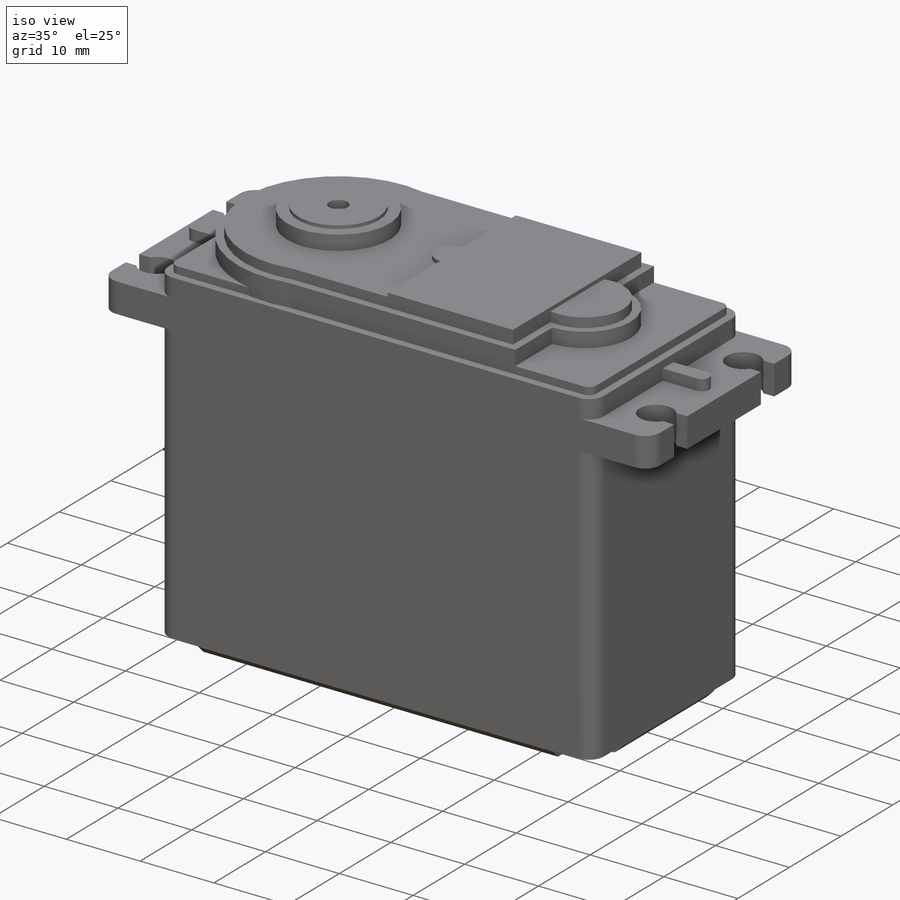
[diagram: iso view]
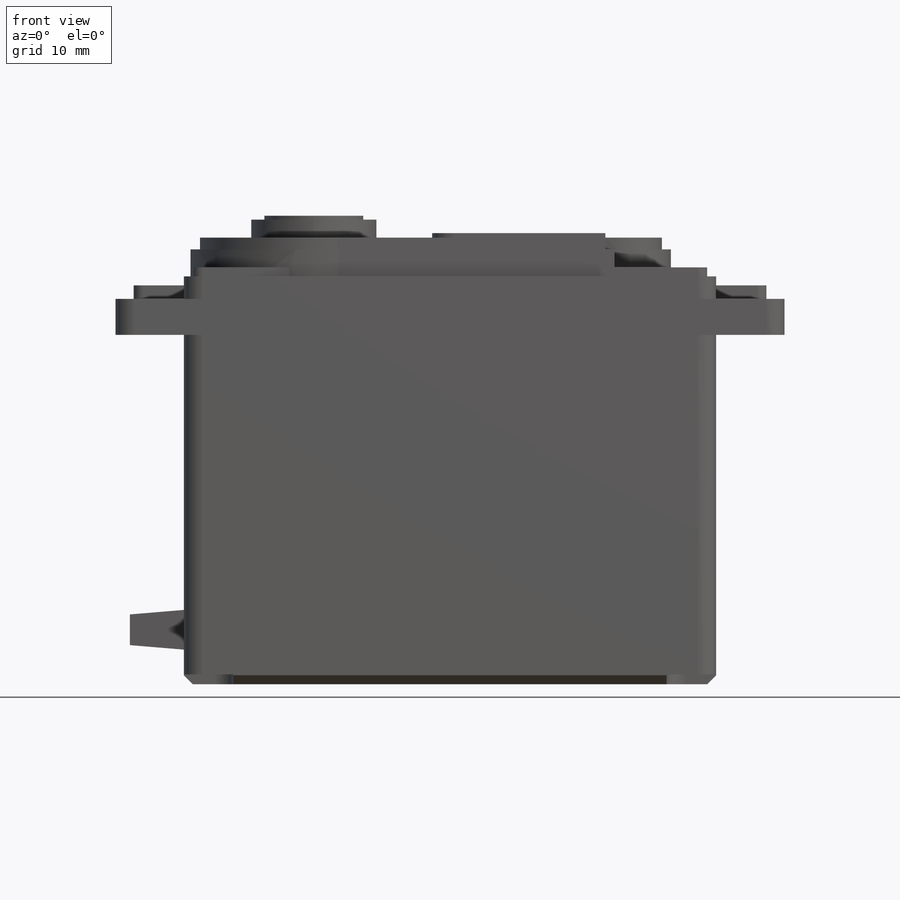
[diagram: front view]
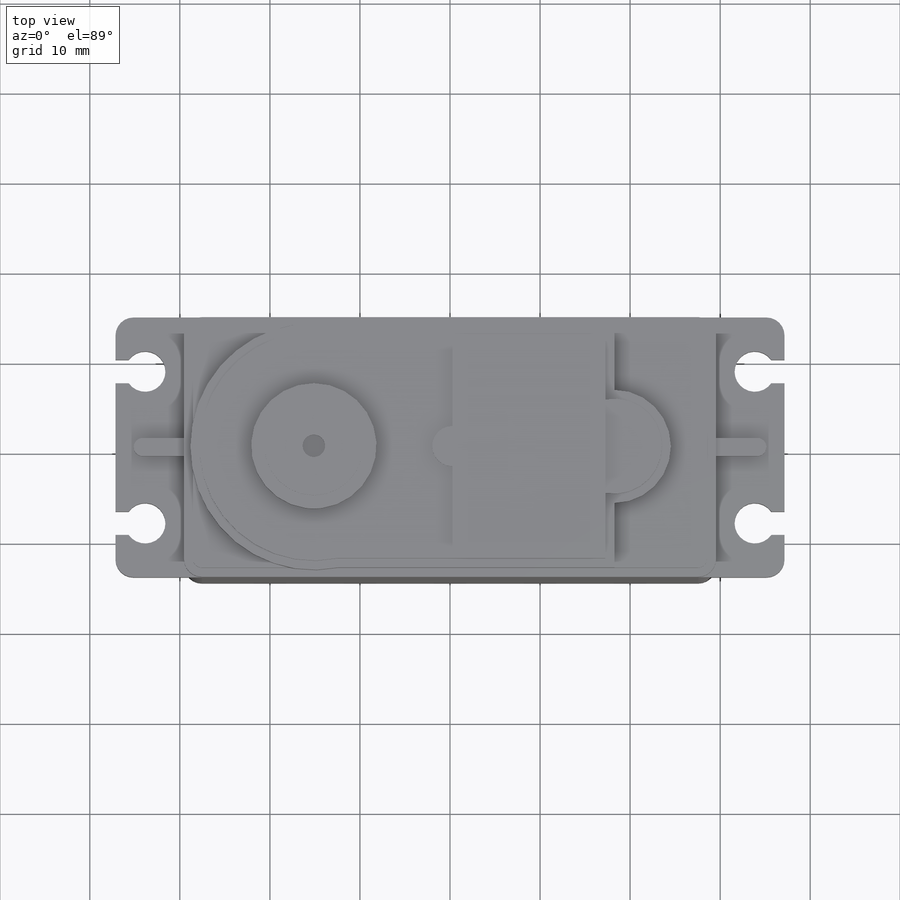
[diagram: top view]
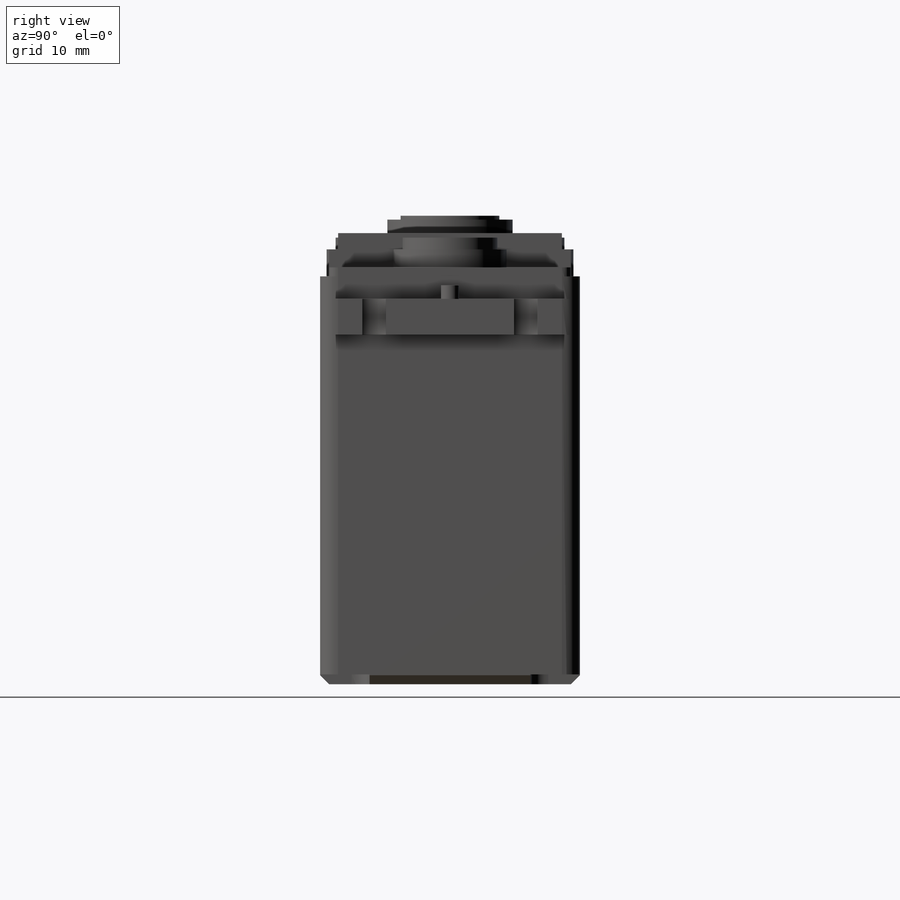
[diagram: right view]
SOLIDWORKS PART (.sldprt)
format: sldprt  version: not decoded by parser v0  size: 572,416 bytes
history: native  units: mm
features: sketch x17, extrude x9, plane x5, cut_extrude x2, fillet x2, hole x2, mirror x2, material x1, chamfer x1 (+9 scaffold rows collapsed)
feature tree (50):
  scaffold x9  (default folders/planes/origin — collapsed)
  material  "Material <sin especificar>"
  plane  "Alzado"
  plane  "Planta"
  plane  "Vista lateral"
  sketch  "Croquis1"  dims[D1=59.1mm D2=28.85mm]
  extrude  "Saliente-Extruir1"  Depth=45.3mm
  sketch  "Croquis2"  dims[D3=2.0mm D1=5.5mm D2=5.5mm]
  cut_extrude  "Cortar-Extruir1"  Depth=1.1mm
  chamfer  "Chaflán1"  Distance=1mm Angle=45deg
  fillet  "Redondeo1"  Radius=2mm
  plane  "Plano1"  Offset=6.5mm
  sketch  "Croquis3"  dims[D1=~13.93307mm D2=7.6mm D3=6.0mm D4=6.0mm D5=3.3mm D6=2.6mm]
  extrude  "Saliente-Extruir2"  Depth=4mm
  fillet  "Redondeo2"  Radius=2mm
  sketch  "Croquis4"  dims[D1=5.55mm D2=2.0mm]
  extrude  "Saliente-Extruir3"  Depth=1.5mm
  sketch  "Croquis5"  dims[D1=1.0mm]
  extrude  "Saliente-Extruir4"  Depth=1mm
  sketch  "Croquis6"  dims[D1=27.4mm D3=6.275mm D2=11.3mm]
  extrude  "Saliente-Extruir5"  Depth=3mm
  sketch  "Croquis7"  dims[D1=1.0mm]
  extrude  "Saliente-Extruir6"  Depth=1.3mm
  sketch  "Croquis8"  dims[D1=13.92mm]
  extrude  "Saliente-Extruir7"  Depth=2mm
  sketch  "Croquis9"  dims[D1=10.97mm]
  extrude  "Saliente-Extruir8"  Depth=0.44mm
  sketch  "Croquis10"  dims[D1=2.5mm]
  cut_extrude  "Cortar-Extruir2"  Depth=1mm
  hole  "Taladro de margen para M1.61"  Depth=5mm  [1 undecoded]
  sketch  "Croquis12"  dims[D1=2.5mm D2=2.5mm]
  sketch  "Croquis11"  dims[hole-wizard template sketch: 46 standard entries collapsed; hole parameters kept: c15.Diámetro de taladro=1.8mm c15.Profundidad de taladro=5.0mm c15.D3=~14.816244mm c15.Ángulo de perforador=118.0deg]
  mirror  "Simetría1"
  mirror  "Simetría2"
  hole  "Taladro de margen para #81"  Depth=4mm  [1 undecoded]
  sketch  "Croquis14"  dims[D1=3.3mm D2=0.0mm D3=3.3mm D4=3.3mm]
  sketch  "Croquis13"  dims[hole-wizard template sketch: 59 standard entries collapsed; hole parameters kept: c18.Diámetro de taladro hasta el siguiente=4.4958mm c18.Profundidad de taladro hasta el siguiente=4.0mm]
  sketch  "Croquis15"  dims[D2=4.46mm D1=17.0mm]
  extrude  "Saliente-Extruir9"  Depth=0.5mm
  sketch  "Croquis17"  dims[D1=3.85mm D2=7.24mm D3=4.41mm]
  plane  "Plano4"  Offset=6mm
  sketch  "Croquis18"  dims[D1=0.5mm]
decode coverage: 33 of 35 modeling features carry decoded parameters
note: ~ marks probable driven/reference dimensions
note: 2 parameter values undecoded
note: suppression state not decoded; provenance and decode notes live in map.json
